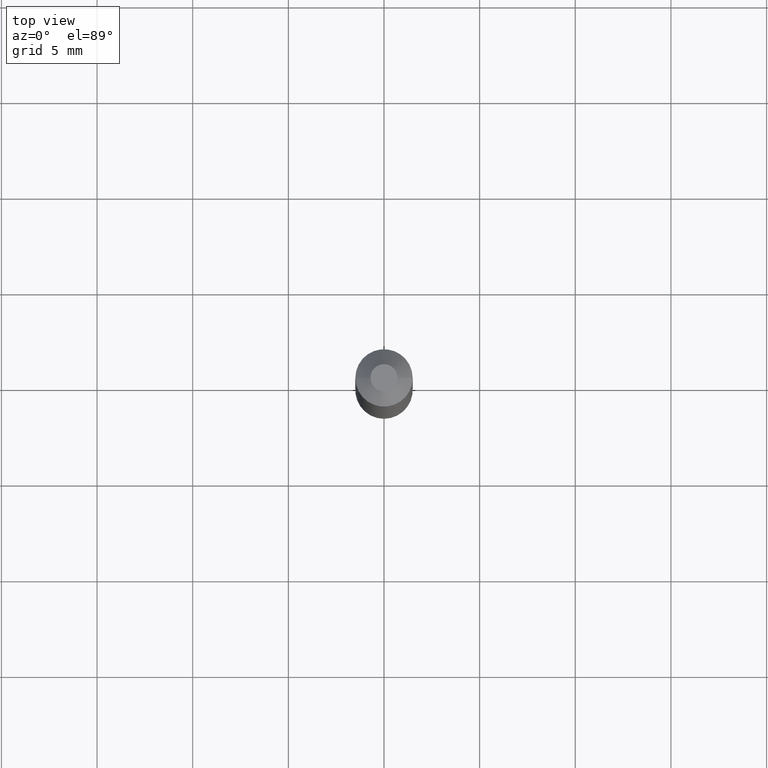
[diagram: clean part render]
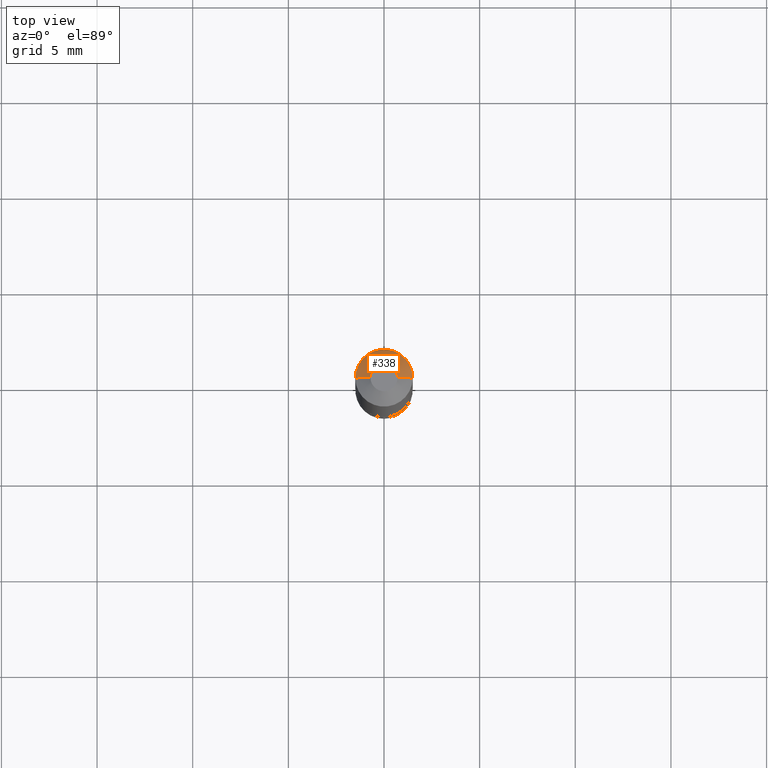
[diagram: same view with one face highlighted and labeled with its STEP entity id]
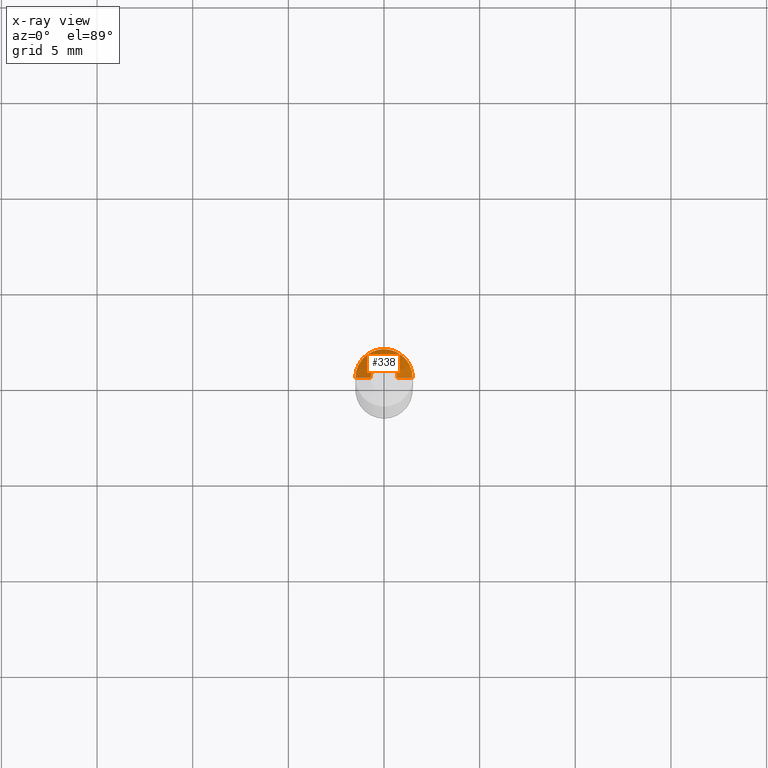
[diagram: x-ray of the same camera — body ghosted, the highlighted face saturated]
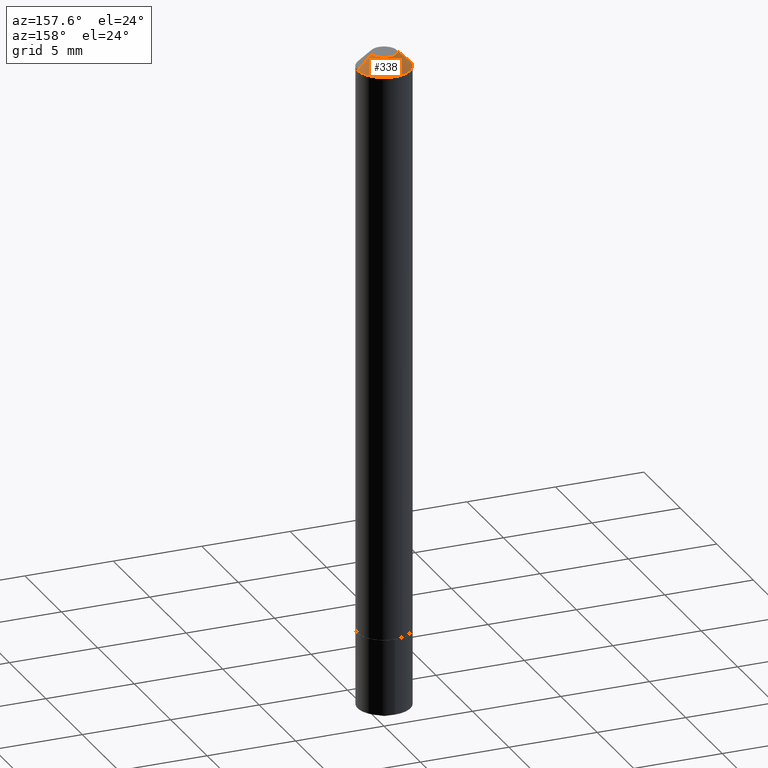
[diagram: same view with one face highlighted and labeled with its STEP entity id]
A machine part, top view. The second image highlights one B-rep face of the part: STEP entity #338.
The next image is the same camera in x-ray: the body ghosted, the highlighted face saturated — about 0% of this face is hidden behind the body in this view.
A second angle (auxiliary view) of the same face is appended — the face is thin or edge-on in the first view.
In plain terms, the highlighted conical surface has half-angle 45 deg.
Its self-contained STEP definition (entity closure, byte-faithful):
#2 = CARTESIAN_POINT ( 'NONE',  ( 7.642090019328604414E-31, -1.091087918388490513E-16, -0.03125000000000021511 ) ) ;
#13 = EDGE_CURVE ( 'NONE', #281, #300, #200, .T. ) ;
#16 = CARTESIAN_POINT ( 'NONE',  ( 0.05905000000000000526, -5.214527379562231333E-16, -0.03125000000000021511 ) ) ;
#21 = EDGE_CURVE ( 'NONE', #333, #300, #62, .T. ) ;
#28 = ORIENTED_EDGE ( 'NONE', *, *, #21, .F. ) ;
#32 = CARTESIAN_POINT ( 'NONE',  ( -0.05905000000000000526, -1.902172317830880095E-15, -0.03125000000000021511 ) ) ;
#37 = CARTESIAN_POINT ( 'NONE',  ( -0.02779999999999999832, 2.486807583591016636E-16, -4.225031457073866508E-19 ) ) ;
#42 = DIRECTION ( 'NONE',  ( -0.7071067811865451302, 2.468850131082231817E-15, -0.7071067811865499042 ) ) ;
#54 = EDGE_LOOP ( 'NONE', ( #214, #265, #144, #28 ) ) ;
#62 = LINE ( 'NONE', #313, #297 ) ;
#64 = DIRECTION ( 'NONE',  ( -2.445468806185136597E-29, 3.491481338843145583E-15, 1.000000000000000000 ) ) ;
#71 = CARTESIAN_POINT ( 'NONE',  ( 7.642090019328604414E-31, -1.091087918388490513E-16, -0.03125000000000021511 ) ) ;
#99 = DIRECTION ( 'NONE',  ( 1.000000000000000000, -6.982962677686266711E-15, 4.876227310796756046E-29 ) ) ;
#121 = AXIS2_PLACEMENT_3D ( 'NONE', #332, #247, #99 ) ;
#123 = CARTESIAN_POINT ( 'NONE',  ( 0.05905000000000000526, -5.142211986072580675E-16, -0.03125000000000021511 ) ) ;
#144 = ORIENTED_EDGE ( 'NONE', *, *, #13, .T. ) ;
#172 = CIRCLE ( 'NONE', #121, 0.02779999999999999832 ) ;
#184 = LINE ( 'NONE', #123, #213 ) ;
#186 = CONICAL_SURFACE ( 'NONE', #381, 0.05905000000000000526, 0.7853981633974449483 ) ;
#200 = CIRCLE ( 'NONE', #291, 0.05905000000000000526 ) ;
#210 = DIRECTION ( 'NONE',  ( 2.445468806185136597E-29, -3.491481338843145583E-15, -1.000000000000000000 ) ) ;
#212 = DIRECTION ( 'NONE',  ( -1.000000000000000000, 6.982962677686267499E-15, 0.000000000000000000 ) ) ;
#213 = VECTOR ( 'NONE', #326, 39.37007874015748143 ) ;
#214 = ORIENTED_EDGE ( 'NONE', *, *, #357, .F. ) ;
#224 = VERTEX_POINT ( 'NONE', #318 ) ;
#247 = DIRECTION ( 'NONE',  ( -2.445468806185136597E-29, 3.491481338843145583E-15, 1.000000000000000000 ) ) ;
#265 = ORIENTED_EDGE ( 'NONE', *, *, #364, .T. ) ;
#280 = FACE_OUTER_BOUND ( 'NONE', #54, .T. ) ;
#281 = VERTEX_POINT ( 'NONE', #16 ) ;
#283 = DIRECTION ( 'NONE',  ( 1.000000000000000000, -6.982962677686267499E-15, 0.000000000000000000 ) ) ;
#291 = AXIS2_PLACEMENT_3D ( 'NONE', #71, #64, #283 ) ;
#297 = VECTOR ( 'NONE', #42, 39.37007874015748143 ) ;
#300 = VERTEX_POINT ( 'NONE', #32 ) ;
#313 = CARTESIAN_POINT ( 'NONE',  ( -0.05905000000000000526, 3.032351542785250307E-16, -0.03125000000000021511 ) ) ;
#318 = CARTESIAN_POINT ( 'NONE',  ( 0.02779999999999999832, -3.524715214726533365E-16, -4.225031457039280658E-19 ) ) ;
#326 = DIRECTION ( 'NONE',  ( 0.7071067811865451302, -7.319954787623248157E-15, -0.7071067811865499042 ) ) ;
#332 = CARTESIAN_POINT ( 'NONE',  ( 1.033218263338721736E-47, -1.475161848834461579E-33, -4.225031457058385402E-19 ) ) ;
#333 = VERTEX_POINT ( 'NONE', #37 ) ;
#338 = ADVANCED_FACE ( 'NONE', ( #280 ), #186, .T. ) ;
#357 = EDGE_CURVE ( 'NONE', #224, #333, #172, .T. ) ;
#364 = EDGE_CURVE ( 'NONE', #224, #281, #184, .T. ) ;
#381 = AXIS2_PLACEMENT_3D ( 'NONE', #2, #210, #212 ) ;